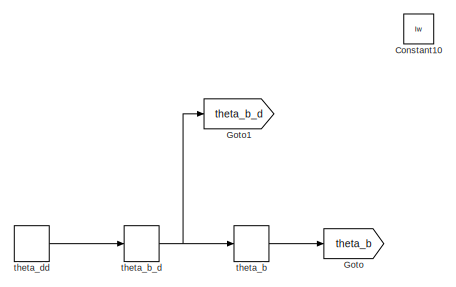
[diagram: root canvas - part 1/2, top left region]
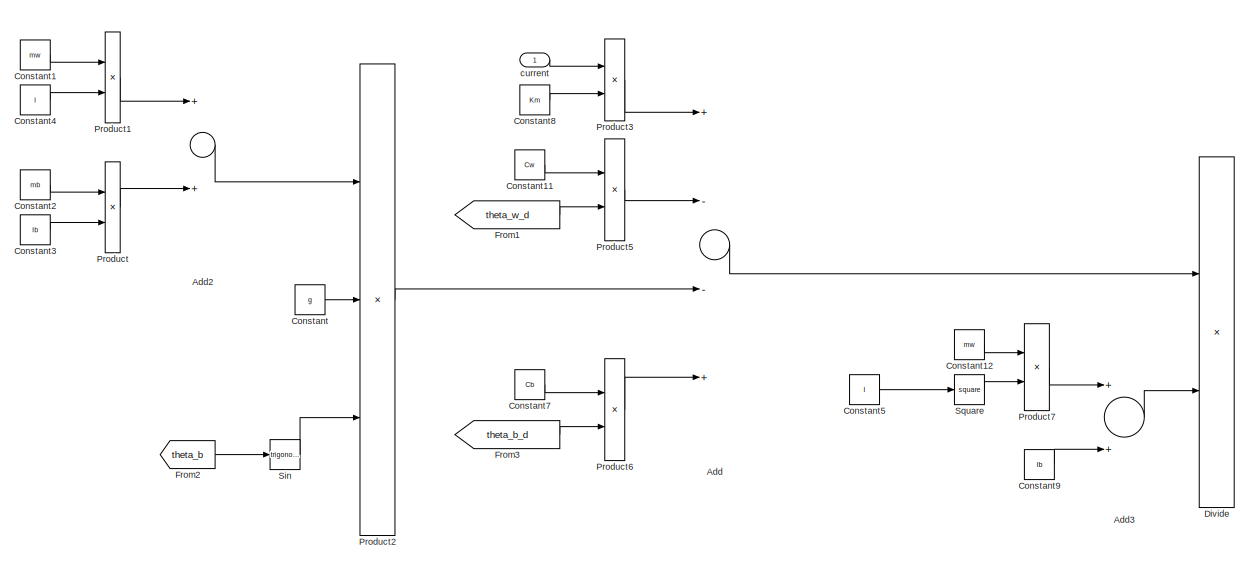
[diagram: root canvas - part 2/2, center side, full height]
MODEL slx_a572425257d8
KIND model
CONFIG AbsTol = auto
CONFIG EnableMultiTasking = off
CONFIG FixedStep = auto
CONFIG MaxStep = auto
CONFIG MinStep = auto
CONFIG RelTol = 1e-3
CONFIG SampleTimeConstraint = Unconstrained
CONFIG Solver = VariableStepAuto
CONFIG SolverName = VariableStepAuto
CONFIG StartTime = 0.0
CONFIG StopTime = 10.0
BLOCK [Sum] Add
  InputSameDT = off
  Inputs = +--+
  OutDataTypeStr = Inherit: Inherit via internal rule
  Ports = [4, 1]
  SaturateOnIntegerOverflow = off
BLOCK [Sum] Add2
  InputSameDT = off
  OutDataTypeStr = Inherit: Inherit via internal rule
  Ports = [2, 1]
  SaturateOnIntegerOverflow = off
BLOCK [Sum] Add3
  InputSameDT = off
  OutDataTypeStr = Inherit: Inherit via internal rule
  Ports = [2, 1]
  SaturateOnIntegerOverflow = off
BLOCK [Constant] Constant
  Value = g
BLOCK [Constant] Constant1
  Value = mw
BLOCK [Constant] Constant10
  Value = Iw
BLOCK [Constant] Constant11
  Value = Cw
BLOCK [Constant] Constant12
  Value = mw
BLOCK [Constant] Constant2
  Value = mb
BLOCK [Constant] Constant3
  Value = lb
BLOCK [Constant] Constant4
  Value = l
BLOCK [Constant] Constant5
  Value = l
BLOCK [Constant] Constant7
  Value = Cb
BLOCK [Constant] Constant8
  Value = Km
BLOCK [Constant] Constant9
  Value = Ib
BLOCK [Product] Divide
  InputSameDT = off
  Inputs = */
  OutDataTypeStr = Inherit: Inherit via internal rule
  Ports = [2, 1]
  RndMeth = Floor
  SaturateOnIntegerOverflow = off
BLOCK [From] From1
  GotoTag = theta_w_d
BLOCK [From] From2
  GotoTag = theta_b
BLOCK [From] From3
  GotoTag = theta_b_d
BLOCK [Goto] Goto
  GotoTag = theta_b
BLOCK [Goto] Goto1
  GotoTag = theta_b_d
BLOCK [Product] Product
  InputSameDT = off
  OutDataTypeStr = Inherit: Inherit via internal rule
  Ports = [2, 1]
  RndMeth = Floor
  SaturateOnIntegerOverflow = off
BLOCK [Product] Product1
  InputSameDT = off
  OutDataTypeStr = Inherit: Inherit via internal rule
  Ports = [2, 1]
  RndMeth = Floor
  SaturateOnIntegerOverflow = off
BLOCK [Product] Product2
  InputSameDT = off
  Inputs = 3
  OutDataTypeStr = Inherit: Inherit via internal rule
  Ports = [3, 1]
  RndMeth = Floor
  SaturateOnIntegerOverflow = off
BLOCK [Product] Product3
  InputSameDT = off
  OutDataTypeStr = Inherit: Inherit via internal rule
  Ports = [2, 1]
  RndMeth = Floor
  SaturateOnIntegerOverflow = off
BLOCK [Product] Product5
  InputSameDT = off
  OutDataTypeStr = Inherit: Inherit via internal rule
  Ports = [2, 1]
  RndMeth = Floor
  SaturateOnIntegerOverflow = off
BLOCK [Product] Product6
  InputSameDT = off
  OutDataTypeStr = Inherit: Inherit via internal rule
  Ports = [2, 1]
  RndMeth = Floor
  SaturateOnIntegerOverflow = off
BLOCK [Product] Product7
  InputSameDT = off
  OutDataTypeStr = Inherit: Inherit via internal rule
  Ports = [2, 1]
  RndMeth = Floor
  SaturateOnIntegerOverflow = off
BLOCK [Trigonometry] Sin
  Ports = [1, 1]
BLOCK [Math] Square
  Operator = square
  Ports = [1, 1]
BLOCK [Inport] current
  IconDisplay = Port number
BLOCK [DiscreteIntegrator] theta_b
  ICPrevOutput = DiscIntNeverNeededParam
  ICPrevScaledInput = DiscIntNeverNeededParam
  InitialConditionSetting = Auto
  Ports = [1, 1]
  SampleTime = -1
BLOCK [DiscreteIntegrator] theta_b_d
  ICPrevOutput = DiscIntNeverNeededParam
  ICPrevScaledInput = DiscIntNeverNeededParam
  InitialConditionSetting = Auto
  Ports = [1, 1]
  SampleTime = -1
BLOCK [DiscreteIntegrator] theta_dd
  ICPrevOutput = DiscIntNeverNeededParam
  ICPrevScaledInput = DiscIntNeverNeededParam
  InitialConditionSetting = Auto
  Ports = [1, 1]
  SampleTime = -1
LINE Add2:1 -> Product2:1
LINE Add3:1 -> Divide:2
LINE Add:1 -> Divide:1
LINE Constant11:1 -> Product5:1
LINE Constant12:1 -> Product7:1
LINE Constant1:1 -> Product1:1
LINE Constant2:1 -> Product:1
LINE Constant3:1 -> Product:2
LINE Constant4:1 -> Product1:2
LINE Constant5:1 -> Square:1
LINE Constant7:1 -> Product6:1
LINE Constant8:1 -> Product3:2
LINE Constant9:1 -> Add3:2
LINE Constant:1 -> Product2:2
LINE From1:1 -> Product5:2
LINE From2:1 -> Sin:1
LINE From3:1 -> Product6:2
LINE Product1:1 -> Add2:1
LINE Product2:1 -> Add:3
LINE Product3:1 -> Add:1
LINE Product5:1 -> Add:2
LINE Product6:1 -> Add:4
LINE Product7:1 -> Add3:1
LINE Product:1 -> Add2:2
LINE Sin:1 -> Product2:3
LINE Square:1 -> Product7:2
LINE current:1 -> Product3:1
LINE theta_b:1 -> Goto:1
NET theta_b_d:1 -> Goto1:1, theta_b:1
LINE theta_dd:1 -> theta_b_d:1
note: NET lines group one-source signal fan-out (src -> all destinations, sorted); 1:1 wires keep LINE
